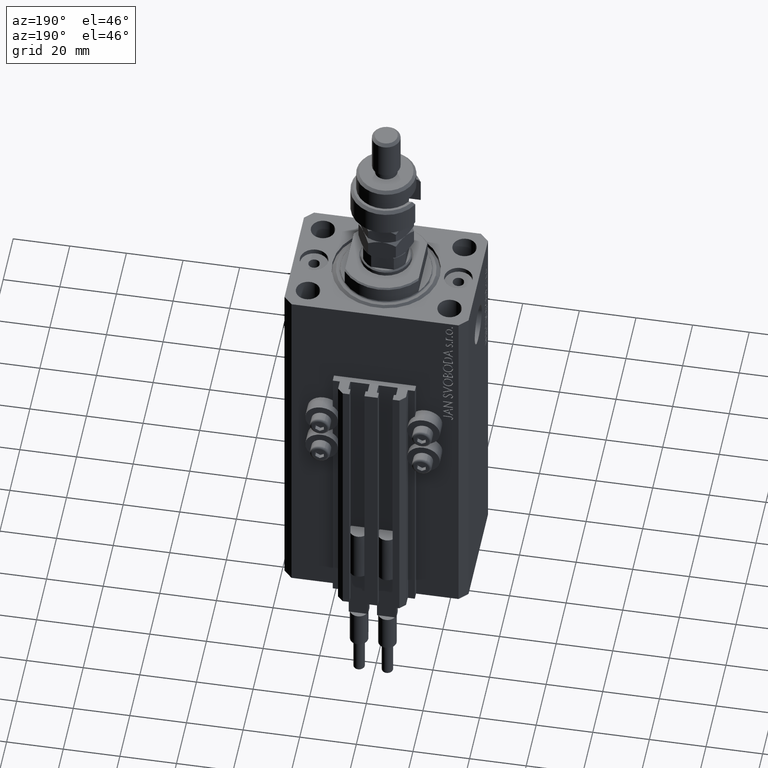
[diagram: clean part render]
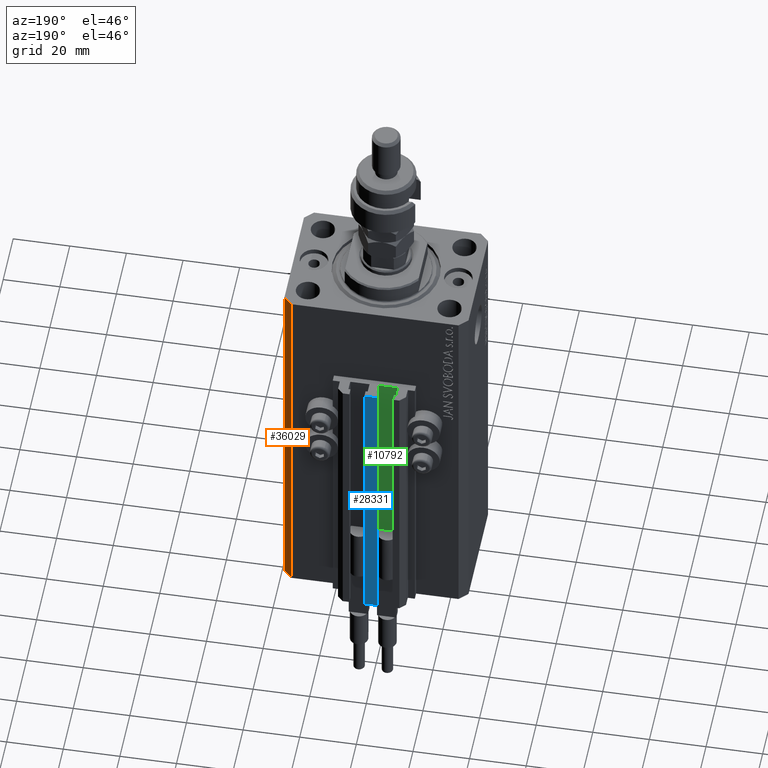
[diagram: same view with three faces highlighted in distinct colors, each labeled with its STEP entity id]
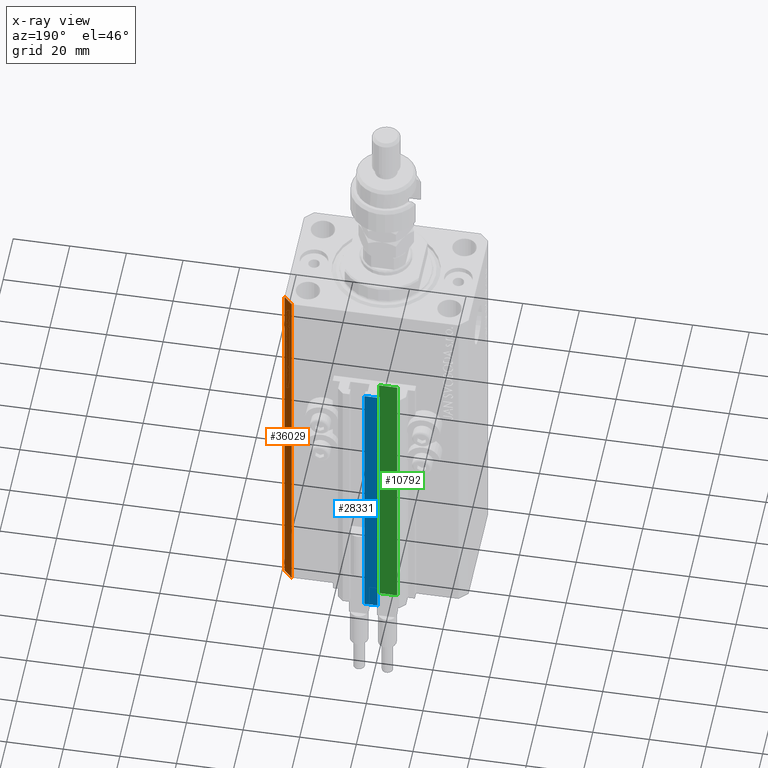
[diagram: x-ray of the same camera — body ghosted, the three highlighted faces saturated]
A machine part, auxiliary view with three faces highlighted in distinct colors.
The next image is the same camera in x-ray (body ghosted, the three faces saturated) — at least one of them is partly hidden behind the body in this view.
Their STEP definitions:

[orange] entity #36029 — the highlighted planar face has unit normal (0.7071, 0.7071, 0).
#817 = VECTOR ( 'NONE', #21229, 1000.000000000000000 ) ;
#1413 = EDGE_CURVE ( 'NONE', #11428, #23823, #22087, .T. ) ;
#1968 = CARTESIAN_POINT ( 'NONE',  ( 29.49999999999707967, 22.49999999999952038, 0.000000000000000000 ) ) ;
#2623 = ORIENTED_EDGE ( 'NONE', *, *, #26618, .F. ) ;
#3378 = VERTEX_POINT ( 'NONE', #35094 ) ;
#5385 = EDGE_CURVE ( 'NONE', #23823, #49577, #44406, .T. ) ;
#6177 = DIRECTION ( 'NONE',  ( 0.7071067811865606734, 0.7071067811865344721, -0.000000000000000000 ) ) ;
#10191 = DIRECTION ( 'NONE',  ( 0.000000000000000000, 0.000000000000000000, 1.000000000000000000 ) ) ;
#11132 = CARTESIAN_POINT ( 'NONE',  ( 32.49999999999702993, 19.49999999999945999, -137.0000000000000000 ) ) ;
#11163 = VECTOR ( 'NONE', #38021, 1000.000000000000000 ) ;
#11428 = VERTEX_POINT ( 'NONE', #11132 ) ;
#13646 = CARTESIAN_POINT ( 'NONE',  ( 32.49999999999702993, 19.49999999999945999, 0.000000000000000000 ) ) ;
#14986 = ORIENTED_EDGE ( 'NONE', *, *, #45629, .F. ) ;
#17013 = FACE_OUTER_BOUND ( 'NONE', #34838, .T. ) ;
#20974 = CARTESIAN_POINT ( 'NONE',  ( 32.49999999999702993, 19.49999999999945999, -137.0000000000000000 ) ) ;
#21229 = DIRECTION ( 'NONE',  ( 0.000000000000000000, 0.000000000000000000, 1.000000000000000000 ) ) ;
#21864 = DIRECTION ( 'NONE',  ( -0.7071067811865344721, 0.7071067811865606734, 0.000000000000000000 ) ) ;
#22087 = LINE ( 'NONE', #44997, #35863 ) ;
#23823 = VERTEX_POINT ( 'NONE', #32382 ) ;
#25716 = PLANE ( 'NONE',  #33822 ) ;
#25942 = LINE ( 'NONE', #13646, #11163 ) ;
#26618 = EDGE_CURVE ( 'NONE', #11428, #3378, #32014, .T. ) ;
#26898 = ORIENTED_EDGE ( 'NONE', *, *, #1413, .T. ) ;
#32014 = LINE ( 'NONE', #20974, #817 ) ;
#32382 = CARTESIAN_POINT ( 'NONE',  ( 29.49999999999707967, 22.49999999999952038, -137.0000000000000000 ) ) ;
#32678 = VECTOR ( 'NONE', #10191, 1000.000000000000000 ) ;
#33822 = AXIS2_PLACEMENT_3D ( 'NONE', #41409, #6177, #21864 ) ;
#34838 = EDGE_LOOP ( 'NONE', ( #14986, #2623, #26898, #39262 ) ) ;
#35094 = CARTESIAN_POINT ( 'NONE',  ( 32.49999999999702993, 19.49999999999945999, 0.000000000000000000 ) ) ;
#35863 = VECTOR ( 'NONE', #41136, 1000.000000000000000 ) ;
#36029 = ADVANCED_FACE ( 'NONE', ( #17013 ), #25716, .T. ) ;
#38021 = DIRECTION ( 'NONE',  ( -0.7071067811865344721, 0.7071067811865606734, 0.000000000000000000 ) ) ;
#39262 = ORIENTED_EDGE ( 'NONE', *, *, #5385, .T. ) ;
#41136 = DIRECTION ( 'NONE',  ( -0.7071067811865344721, 0.7071067811865606734, 0.000000000000000000 ) ) ;
#41409 = CARTESIAN_POINT ( 'NONE',  ( 32.49999999999702993, 19.49999999999945999, -137.0000000000000000 ) ) ;
#44406 = LINE ( 'NONE', #48512, #32678 ) ;
#44997 = CARTESIAN_POINT ( 'NONE',  ( 32.49999999999702993, 19.49999999999945999, -137.0000000000000000 ) ) ;
#45629 = EDGE_CURVE ( 'NONE', #3378, #49577, #25942, .T. ) ;
#48512 = CARTESIAN_POINT ( 'NONE',  ( 29.49999999999707967, 22.49999999999952038, -137.0000000000000000 ) ) ;
#49577 = VERTEX_POINT ( 'NONE', #1968 ) ;

[blue] entity #28331 — the highlighted planar face has unit normal (0, -1, 0).
#1401 = DIRECTION ( 'NONE',  ( 0.000000000000000000, 0.000000000000000000, 1.000000000000000000 ) ) ;
#4603 = CARTESIAN_POINT ( 'NONE',  ( -2.350000000000003197, 30.49999999999949907, -137.0000000000000000 ) ) ;
#4853 = AXIS2_PLACEMENT_3D ( 'NONE', #4603, #47797, #20023 ) ;
#4869 = FACE_OUTER_BOUND ( 'NONE', #32794, .T. ) ;
#5236 = CARTESIAN_POINT ( 'NONE',  ( 2.349999999999999645, 30.49999999999949907, -137.0000000000000000 ) ) ;
#5455 = CARTESIAN_POINT ( 'NONE',  ( -2.350000000000003197, 30.49999999999949907, -33.00000000000000000 ) ) ;
#6047 = ORIENTED_EDGE ( 'NONE', *, *, #39348, .F. ) ;
#9956 = CARTESIAN_POINT ( 'NONE',  ( -2.350000000000003197, 30.49999999999949907, -33.00000000000000000 ) ) ;
#12088 = ORIENTED_EDGE ( 'NONE', *, *, #27632, .T. ) ;
#13203 = LINE ( 'NONE', #44312, #17407 ) ;
#14744 = CARTESIAN_POINT ( 'NONE',  ( 2.349999999999999645, 30.49999999999949907, -33.00000000000000000 ) ) ;
#16451 = VECTOR ( 'NONE', #28697, 1000.000000000000000 ) ;
#17407 = VECTOR ( 'NONE', #32968, 1000.000000000000000 ) ;
#20023 = DIRECTION ( 'NONE',  ( 0.000000000000000000, -0.000000000000000000, -1.000000000000000000 ) ) ;
#20548 = PLANE ( 'NONE',  #4853 ) ;
#20720 = VERTEX_POINT ( 'NONE', #22180 ) ;
#20936 = LINE ( 'NONE', #21187, #26543 ) ;
#21187 = CARTESIAN_POINT ( 'NONE',  ( 2.349999999999999645, 30.49999999999949907, -137.0000000000000000 ) ) ;
#22105 = ORIENTED_EDGE ( 'NONE', *, *, #32495, .T. ) ;
#22180 = CARTESIAN_POINT ( 'NONE',  ( -2.350000000000003197, 30.49999999999949907, -137.0000000000000000 ) ) ;
#25364 = DIRECTION ( 'NONE',  ( 1.000000000000000000, 0.000000000000000000, 0.000000000000000000 ) ) ;
#25461 = ORIENTED_EDGE ( 'NONE', *, *, #34618, .F. ) ;
#26543 = VECTOR ( 'NONE', #1401, 1000.000000000000000 ) ;
#27632 = EDGE_CURVE ( 'NONE', #20720, #32239, #41025, .T. ) ;
#27982 = VECTOR ( 'NONE', #25364, 1000.000000000000000 ) ;
#28331 = ADVANCED_FACE ( 'NONE', ( #4869 ), #20548, .F. ) ;
#28655 = VERTEX_POINT ( 'NONE', #14744 ) ;
#28697 = DIRECTION ( 'NONE',  ( 0.000000000000000000, 0.000000000000000000, 1.000000000000000000 ) ) ;
#32239 = VERTEX_POINT ( 'NONE', #5455 ) ;
#32495 = EDGE_CURVE ( 'NONE', #32239, #28655, #44918, .T. ) ;
#32794 = EDGE_LOOP ( 'NONE', ( #22105, #6047, #25461, #12088 ) ) ;
#32968 = DIRECTION ( 'NONE',  ( 1.000000000000000000, 0.000000000000000000, 0.000000000000000000 ) ) ;
#34618 = EDGE_CURVE ( 'NONE', #20720, #48303, #13203, .T. ) ;
#39348 = EDGE_CURVE ( 'NONE', #48303, #28655, #20936, .T. ) ;
#41025 = LINE ( 'NONE', #47983, #16451 ) ;
#44312 = CARTESIAN_POINT ( 'NONE',  ( -2.350000000000003197, 30.49999999999949907, -137.0000000000000000 ) ) ;
#44918 = LINE ( 'NONE', #9956, #27982 ) ;
#47797 = DIRECTION ( 'NONE',  ( 0.000000000000000000, -1.000000000000000000, 0.000000000000000000 ) ) ;
#47983 = CARTESIAN_POINT ( 'NONE',  ( -2.350000000000003197, 30.49999999999949907, -137.0000000000000000 ) ) ;
#48303 = VERTEX_POINT ( 'NONE', #5236 ) ;

[green] entity #10792 — the highlighted planar face has unit normal (0, 1, 0).
#3008 = ORIENTED_EDGE ( 'NONE', *, *, #7614, .F. ) ;
#3623 = CARTESIAN_POINT ( 'NONE',  ( -8.199999999999999289, 24.49999999999949551, -137.0000000000000000 ) ) ;
#7218 = LINE ( 'NONE', #3623, #22916 ) ;
#7614 = EDGE_CURVE ( 'NONE', #38824, #34581, #31560, .T. ) ;
#8767 = VERTEX_POINT ( 'NONE', #11866 ) ;
#9016 = DIRECTION ( 'NONE',  ( -1.000000000000000000, 0.000000000000000000, 0.000000000000000000 ) ) ;
#10792 = ADVANCED_FACE ( 'NONE', ( #14599 ), #30527, .T. ) ;
#10942 = CARTESIAN_POINT ( 'NONE',  ( -8.199999999999999289, 24.49999999999949551, -137.0000000000000000 ) ) ;
#11006 = DIRECTION ( 'NONE',  ( 0.000000000000000000, 1.000000000000000000, -0.000000000000000000 ) ) ;
#11534 = DIRECTION ( 'NONE',  ( -1.000000000000000000, 0.000000000000000000, 0.000000000000000000 ) ) ;
#11866 = CARTESIAN_POINT ( 'NONE',  ( -1.800000000000000933, 24.49999999999949551, -137.0000000000000000 ) ) ;
#14599 = FACE_OUTER_BOUND ( 'NONE', #35442, .T. ) ;
#16420 = CARTESIAN_POINT ( 'NONE',  ( -1.800000000000000933, 24.49999999999949551, -33.00000000000000000 ) ) ;
#16974 = LINE ( 'NONE', #40868, #35157 ) ;
#17287 = CARTESIAN_POINT ( 'NONE',  ( -1.800000000000000933, 24.49999999999949551, -137.0000000000000000 ) ) ;
#21139 = LINE ( 'NONE', #17287, #49268 ) ;
#21385 = ORIENTED_EDGE ( 'NONE', *, *, #25401, .T. ) ;
#22916 = VECTOR ( 'NONE', #43216, 1000.000000000000000 ) ;
#23842 = VECTOR ( 'NONE', #11534, 1000.000000000000000 ) ;
#23862 = EDGE_CURVE ( 'NONE', #8767, #43353, #16974, .T. ) ;
#25149 = ORIENTED_EDGE ( 'NONE', *, *, #23862, .T. ) ;
#25401 = EDGE_CURVE ( 'NONE', #43353, #34581, #7218, .T. ) ;
#29086 = DIRECTION ( 'NONE',  ( 0.000000000000000000, 0.000000000000000000, 1.000000000000000000 ) ) ;
#30527 = PLANE ( 'NONE',  #36293 ) ;
#31560 = LINE ( 'NONE', #16420, #23842 ) ;
#32271 = EDGE_CURVE ( 'NONE', #8767, #38824, #21139, .T. ) ;
#34370 = CARTESIAN_POINT ( 'NONE',  ( -1.800000000000000933, 24.49999999999949551, -137.0000000000000000 ) ) ;
#34581 = VERTEX_POINT ( 'NONE', #48415 ) ;
#35157 = VECTOR ( 'NONE', #9016, 1000.000000000000000 ) ;
#35442 = EDGE_LOOP ( 'NONE', ( #3008, #42755, #25149, #21385 ) ) ;
#36293 = AXIS2_PLACEMENT_3D ( 'NONE', #34370, #11006, #42360 ) ;
#38824 = VERTEX_POINT ( 'NONE', #50174 ) ;
#40868 = CARTESIAN_POINT ( 'NONE',  ( -1.800000000000000933, 24.49999999999949551, -137.0000000000000000 ) ) ;
#42360 = DIRECTION ( 'NONE',  ( 0.000000000000000000, 0.000000000000000000, 1.000000000000000000 ) ) ;
#42755 = ORIENTED_EDGE ( 'NONE', *, *, #32271, .F. ) ;
#43216 = DIRECTION ( 'NONE',  ( 0.000000000000000000, 0.000000000000000000, 1.000000000000000000 ) ) ;
#43353 = VERTEX_POINT ( 'NONE', #10942 ) ;
#48415 = CARTESIAN_POINT ( 'NONE',  ( -8.199999999999999289, 24.49999999999949551, -33.00000000000000000 ) ) ;
#49268 = VECTOR ( 'NONE', #29086, 1000.000000000000000 ) ;
#50174 = CARTESIAN_POINT ( 'NONE',  ( -1.800000000000000933, 24.49999999999949551, -33.00000000000000000 ) ) ;